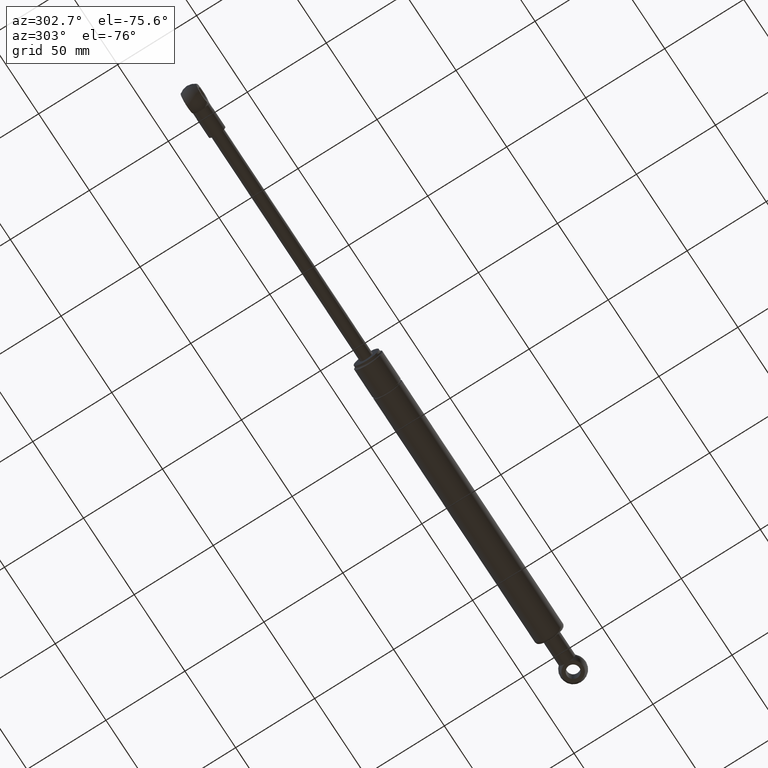
[diagram: clean part render]
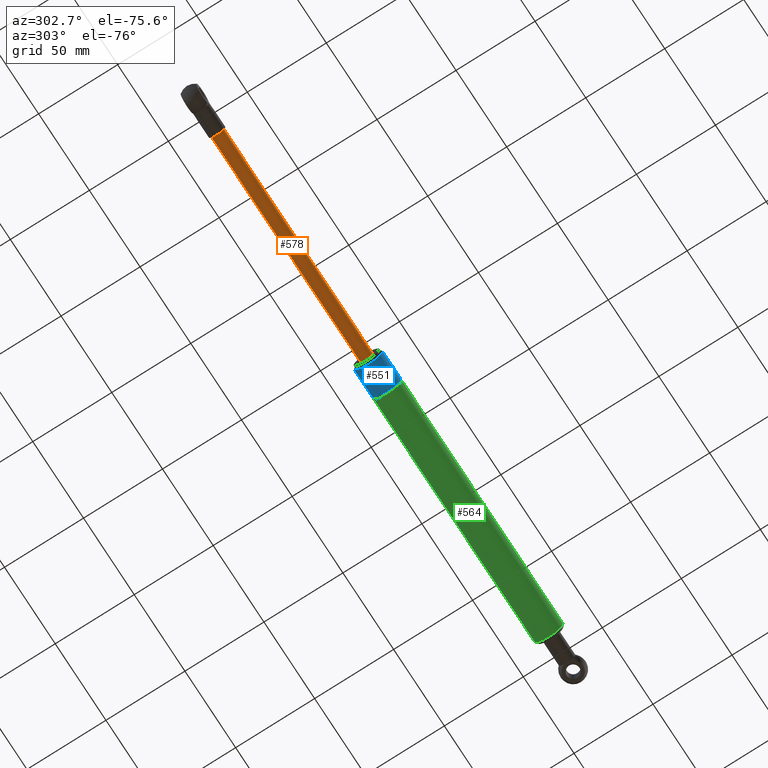
[diagram: same view with three faces highlighted in distinct colors, each labeled with its STEP entity id]
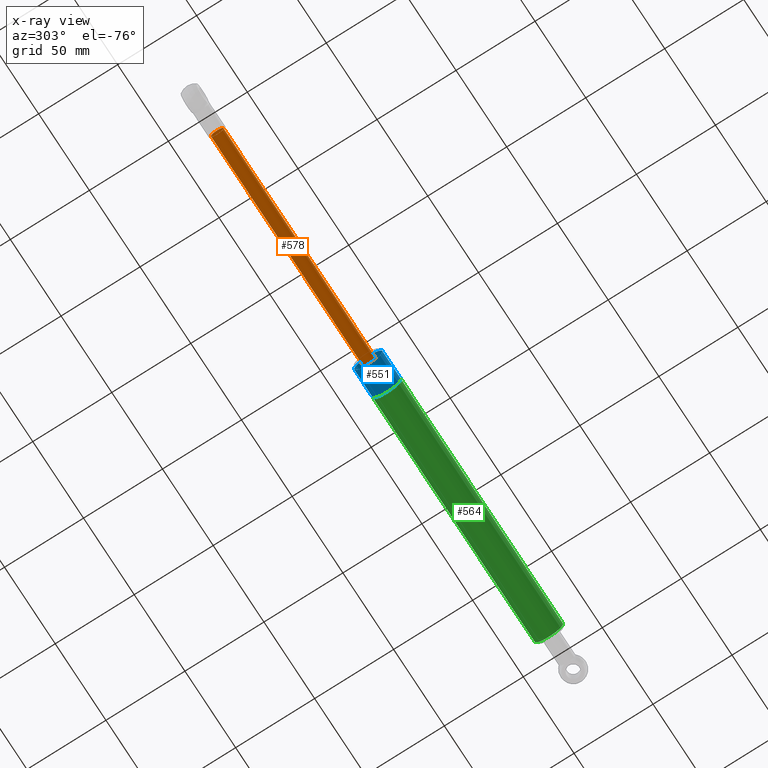
[diagram: x-ray of the same camera — body ghosted, the three highlighted faces saturated]
A machine part, auxiliary view with three faces highlighted in distinct colors.
The next image is the same camera in x-ray (body ghosted, the three faces saturated) — at least one of them is partly hidden behind the body in this view.
Their STEP definitions:

[orange] entity #578 — the highlighted cylindrical surface (bore or boss wall) has radius 4 mm, axis along (-1, 0, -0).
#73=CYLINDRICAL_SURFACE('',#660,4.00000000000001);
#110=FACE_BOUND('',#225,.T.);
#152=FACE_OUTER_BOUND('',#224,.T.);
#224=EDGE_LOOP('',(#445));
#225=EDGE_LOOP('',(#446));
#273=CIRCLE('',#653,4.00000000000001);
#275=CIRCLE('',#656,4.);
#316=VERTEX_POINT('',#977);
#318=VERTEX_POINT('',#982);
#362=EDGE_CURVE('',#316,#316,#273,.T.);
#364=EDGE_CURVE('',#318,#318,#275,.T.);
#445=ORIENTED_EDGE('',*,*,#362,.T.);
#446=ORIENTED_EDGE('',*,*,#364,.T.);
#578=ADVANCED_FACE('',(#152,#110),#73,.T.);
#653=AXIS2_PLACEMENT_3D('',#978,#809,#810);
#656=AXIS2_PLACEMENT_3D('',#983,#815,#816);
#660=AXIS2_PLACEMENT_3D('',#988,#823,#824);
#809=DIRECTION('center_axis',(1.,0.,0.));
#810=DIRECTION('ref_axis',(0.,0.,1.));
#815=DIRECTION('center_axis',(-1.,0.,0.));
#816=DIRECTION('ref_axis',(0.,0.,1.));
#823=DIRECTION('center_axis',(-1.,0.,0.));
#824=DIRECTION('ref_axis',(0.,0.,1.));
#977=CARTESIAN_POINT('',(0.,4.89858719658942E-16,4.00000000000001));
#978=CARTESIAN_POINT('Origin',(0.,0.,0.));
#982=CARTESIAN_POINT('',(157.,0.,4.));
#983=CARTESIAN_POINT('Origin',(157.,0.,0.));
#988=CARTESIAN_POINT('Origin',(78.5,0.,0.));

[blue] entity #551 — the highlighted cylindrical surface (bore or boss wall) has radius 9 mm, axis along (1, 0, -0).
#62=CYLINDRICAL_SURFACE('',#606,9.00000000000001);
#87=FACE_BOUND('',#175,.T.);
#125=FACE_OUTER_BOUND('',#174,.T.);
#174=EDGE_LOOP('',(#395));
#175=EDGE_LOOP('',(#396));
#251=CIRCLE('',#605,9.00000000000001);
#252=CIRCLE('',#607,9.00000000000003);
#294=VERTEX_POINT('',#907);
#295=VERTEX_POINT('',#910);
#340=EDGE_CURVE('',#294,#294,#251,.T.);
#341=EDGE_CURVE('',#295,#295,#252,.T.);
#395=ORIENTED_EDGE('',*,*,#341,.T.);
#396=ORIENTED_EDGE('',*,*,#340,.T.);
#551=ADVANCED_FACE('',(#125,#87),#62,.T.);
#605=AXIS2_PLACEMENT_3D('',#908,#713,#714);
#606=AXIS2_PLACEMENT_3D('',#909,#715,#716);
#607=AXIS2_PLACEMENT_3D('',#911,#717,#718);
#713=DIRECTION('center_axis',(-1.,0.,1.20871055100319E-16));
#714=DIRECTION('ref_axis',(1.22464679914735E-16,0.,1.));
#715=DIRECTION('center_axis',(1.,0.,-1.22464679914735E-16));
#716=DIRECTION('ref_axis',(1.22464679914735E-16,0.,1.));
#717=DIRECTION('center_axis',(1.,0.,-1.22464679914735E-16));
#718=DIRECTION('ref_axis',(1.22464679914735E-16,0.,1.));
#907=CARTESIAN_POINT('',(20.,-1.10218211923262E-15,-9.00000000000002));
#908=CARTESIAN_POINT('Origin',(20.,0.,-2.44929359829471E-15));
#909=CARTESIAN_POINT('Origin',(91.9999999999999,0.,-1.12667505521556E-14));
#910=CARTESIAN_POINT('',(1.99999999999989,0.,9.00000000000003));
#911=CARTESIAN_POINT('Origin',(1.99999999999989,0.,-2.44929359829457E-16));

[green] entity #564 — the highlighted cylindrical surface (bore or boss wall) has radius 9 mm, axis along (1, 0, -0).
#68=CYLINDRICAL_SURFACE('',#633,9.00000000000001);
#98=FACE_BOUND('',#199,.T.);
#138=FACE_OUTER_BOUND('',#198,.T.);
#198=EDGE_LOOP('',(#419));
#199=EDGE_LOOP('',(#420));
#246=CIRCLE('',#596,9.00000000000001);
#264=CIRCLE('',#631,9.00000000000001);
#289=VERTEX_POINT('',#893);
#307=VERTEX_POINT('',#946);
#335=EDGE_CURVE('',#289,#289,#246,.T.);
#353=EDGE_CURVE('',#307,#307,#264,.T.);
#419=ORIENTED_EDGE('',*,*,#335,.T.);
#420=ORIENTED_EDGE('',*,*,#353,.F.);
#564=ADVANCED_FACE('',(#138,#98),#68,.T.);
#596=AXIS2_PLACEMENT_3D('',#894,#695,#696);
#631=AXIS2_PLACEMENT_3D('',#947,#765,#766);
#633=AXIS2_PLACEMENT_3D('',#950,#769,#770);
#695=DIRECTION('center_axis',(1.,0.,-1.20871055100319E-16));
#696=DIRECTION('ref_axis',(1.22464679914735E-16,0.,1.));
#765=DIRECTION('center_axis',(1.,0.,-1.22464679914735E-16));
#766=DIRECTION('ref_axis',(-1.2335811384724E-16,-1.22464679914735E-16,-1.));
#769=DIRECTION('center_axis',(1.,0.,-1.22464679914735E-16));
#770=DIRECTION('ref_axis',(1.22464679914735E-16,0.,1.));
#893=CARTESIAN_POINT('',(21.,1.10218211923262E-15,-9.00000000000002));
#894=CARTESIAN_POINT('Origin',(21.,0.,-2.57175827820944E-15));
#946=CARTESIAN_POINT('',(180.,0.,8.99999999999999));
#947=CARTESIAN_POINT('Origin',(180.,0.,-2.20436423846524E-14));
#950=CARTESIAN_POINT('Origin',(91.9999999999999,0.,-1.12667505521556E-14));